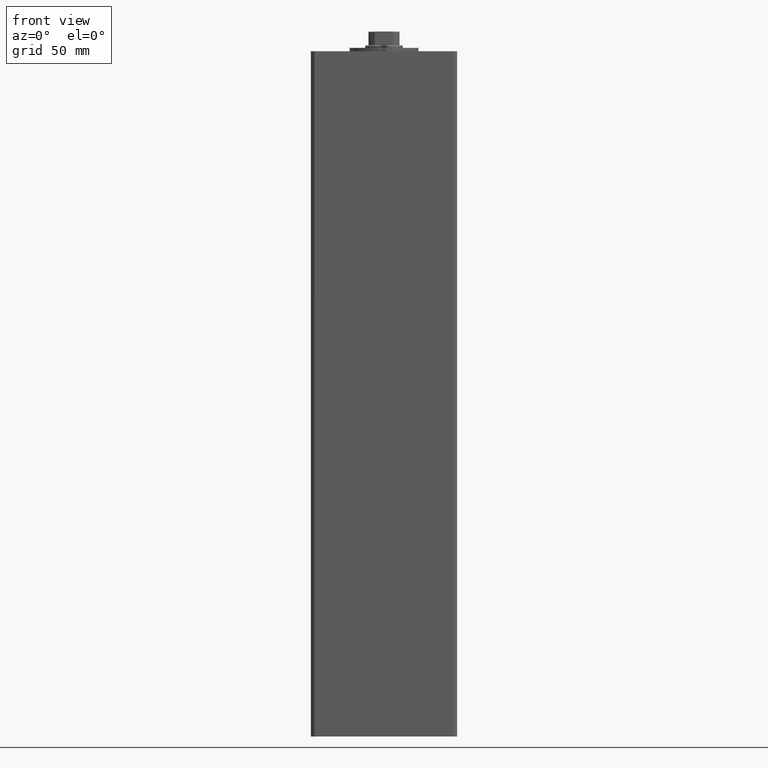
[diagram: clean part render]
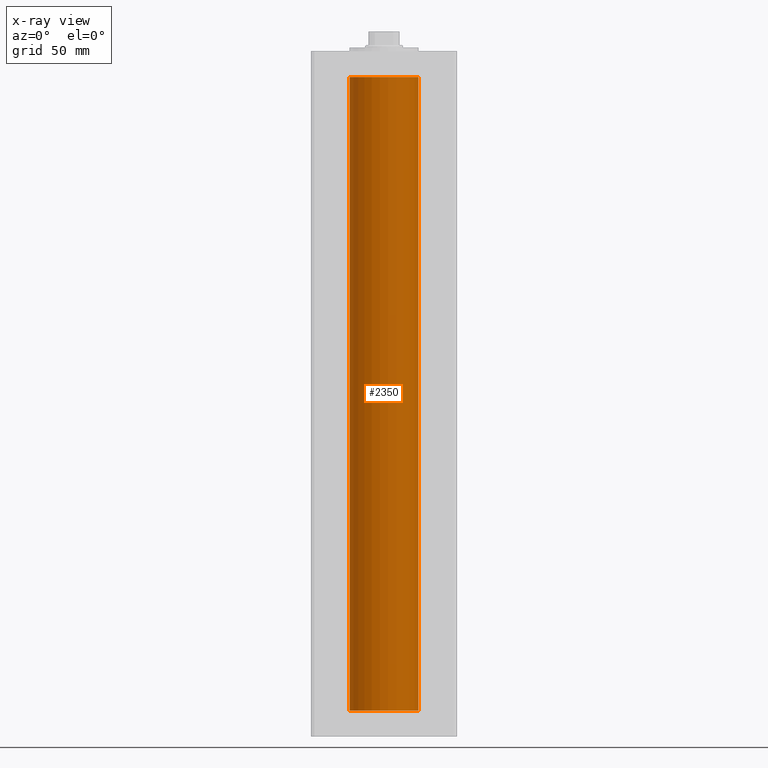
[diagram: x-ray — body ghosted, one internal face saturated and labeled with its STEP entity id]
A machine part, front view, then the same camera in x-ray: the body is ghosted and one INTERNAL B-rep face — a face not visible from any outside direction — is saturated and labeled: STEP entity #2350.
In plain terms, the highlighted cylindrical surface (edge-blend (fillet) strip) has radius 20 mm, axis along (-0, -0, -1).
Its self-contained STEP definition (entity closure, byte-faithful):
#2350 = ADVANCED_FACE ( 'NONE', ( #31013 ), #22876, .F. ) ;
#4892 = ORIENTED_EDGE ( 'NONE', *, *, #39582, .F. ) ;
#5207 = EDGE_LOOP ( 'NONE', ( #11727, #25101, #4892, #27200 ) ) ;
#7153 = DIRECTION ( 'NONE',  ( -0.000000000000000000, -0.000000000000000000, -1.000000000000000000 ) ) ;
#8334 = EDGE_CURVE ( 'NONE', #28937, #29482, #34259, .T. ) ;
#8736 = VERTEX_POINT ( 'NONE', #47566 ) ;
#8953 = DIRECTION ( 'NONE',  ( -0.000000000000000000, -0.000000000000000000, -1.000000000000000000 ) ) ;
#11080 = DIRECTION ( 'NONE',  ( -1.000000000000000000, 0.000000000000000000, 0.000000000000000000 ) ) ;
#11727 = ORIENTED_EDGE ( 'NONE', *, *, #8334, .T. ) ;
#12503 = AXIS2_PLACEMENT_3D ( 'NONE', #19107, #31170, #35357 ) ;
#14190 = DIRECTION ( 'NONE',  ( -0.000000000000000000, -0.000000000000000000, -1.000000000000000000 ) ) ;
#14948 = AXIS2_PLACEMENT_3D ( 'NONE', #42521, #7153, #11080 ) ;
#15046 = DIRECTION ( 'NONE',  ( 1.000000000000000000, 0.000000000000000000, 0.000000000000000000 ) ) ;
#18983 = CARTESIAN_POINT ( 'NONE',  ( 0.000000000000000000, 0.000000000000000000, 0.000000000000000000 ) ) ;
#19000 = CARTESIAN_POINT ( 'NONE',  ( 20.00000000000000000, 2.449293598294706513E-15, 368.5000000000000000 ) ) ;
#19107 = CARTESIAN_POINT ( 'NONE',  ( 0.000000000000000000, 0.000000000000000000, 368.5000000000000000 ) ) ;
#20460 = AXIS2_PLACEMENT_3D ( 'NONE', #18983, #50414, #15046 ) ;
#22876 = CYLINDRICAL_SURFACE ( 'NONE', #14948, 20.00000000000000000 ) ;
#23783 = CIRCLE ( 'NONE', #20460, 20.00000000000000000 ) ;
#24409 = CARTESIAN_POINT ( 'NONE',  ( 20.00000000000000000, 2.449293598294706513E-15, 368.5000000000000000 ) ) ;
#25101 = ORIENTED_EDGE ( 'NONE', *, *, #26660, .T. ) ;
#26279 = CARTESIAN_POINT ( 'NONE',  ( -20.00000000000000000, 0.000000000000000000, 368.5000000000000000 ) ) ;
#26660 = EDGE_CURVE ( 'NONE', #29482, #33789, #44836, .T. ) ;
#27200 = ORIENTED_EDGE ( 'NONE', *, *, #42608, .F. ) ;
#27759 = CARTESIAN_POINT ( 'NONE',  ( 20.00000000000000000, 2.449293598294706513E-15, 0.000000000000000000 ) ) ;
#28937 = VERTEX_POINT ( 'NONE', #26279 ) ;
#29482 = VERTEX_POINT ( 'NONE', #19000 ) ;
#31013 = FACE_OUTER_BOUND ( 'NONE', #5207, .T. ) ;
#31170 = DIRECTION ( 'NONE',  ( -0.000000000000000000, 0.000000000000000000, 1.000000000000000000 ) ) ;
#33789 = VERTEX_POINT ( 'NONE', #27759 ) ;
#34259 = CIRCLE ( 'NONE', #12503, 20.00000000000000000 ) ;
#35357 = DIRECTION ( 'NONE',  ( 1.000000000000000000, 0.000000000000000000, 0.000000000000000000 ) ) ;
#39582 = EDGE_CURVE ( 'NONE', #8736, #33789, #23783, .T. ) ;
#40452 = VECTOR ( 'NONE', #8953, 1000.000000000000000 ) ;
#42521 = CARTESIAN_POINT ( 'NONE',  ( 0.000000000000000000, 0.000000000000000000, 368.5000000000000000 ) ) ;
#42608 = EDGE_CURVE ( 'NONE', #28937, #8736, #50591, .T. ) ;
#44836 = LINE ( 'NONE', #24409, #40452 ) ;
#47278 = VECTOR ( 'NONE', #14190, 1000.000000000000000 ) ;
#47566 = CARTESIAN_POINT ( 'NONE',  ( -20.00000000000000000, 0.000000000000000000, 0.000000000000000000 ) ) ;
#50414 = DIRECTION ( 'NONE',  ( -0.000000000000000000, 0.000000000000000000, 1.000000000000000000 ) ) ;
#50591 = LINE ( 'NONE', #50842, #47278 ) ;
#50842 = CARTESIAN_POINT ( 'NONE',  ( -20.00000000000000000, 0.000000000000000000, 368.5000000000000000 ) ) ;